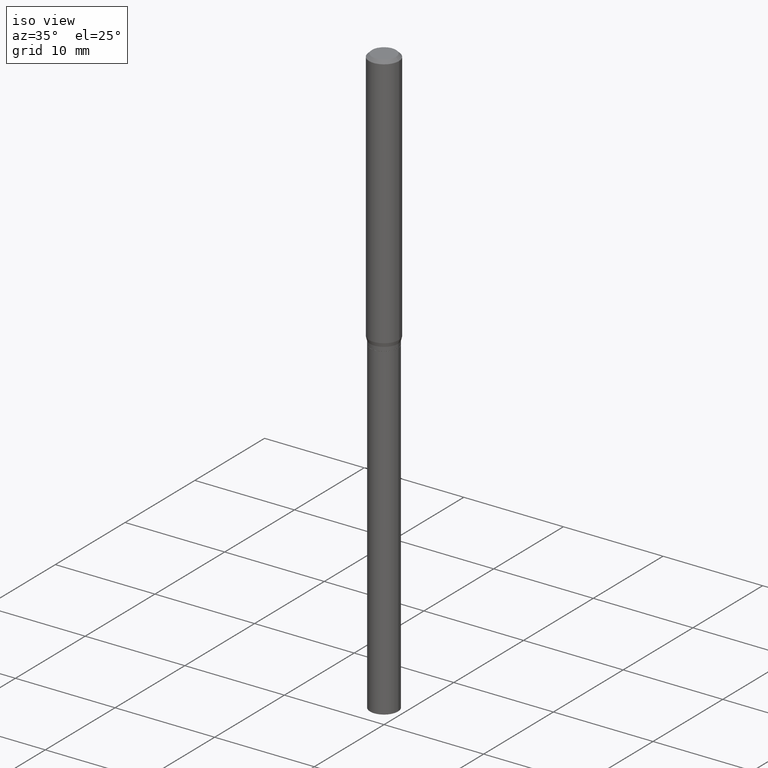
[diagram: clean part render]
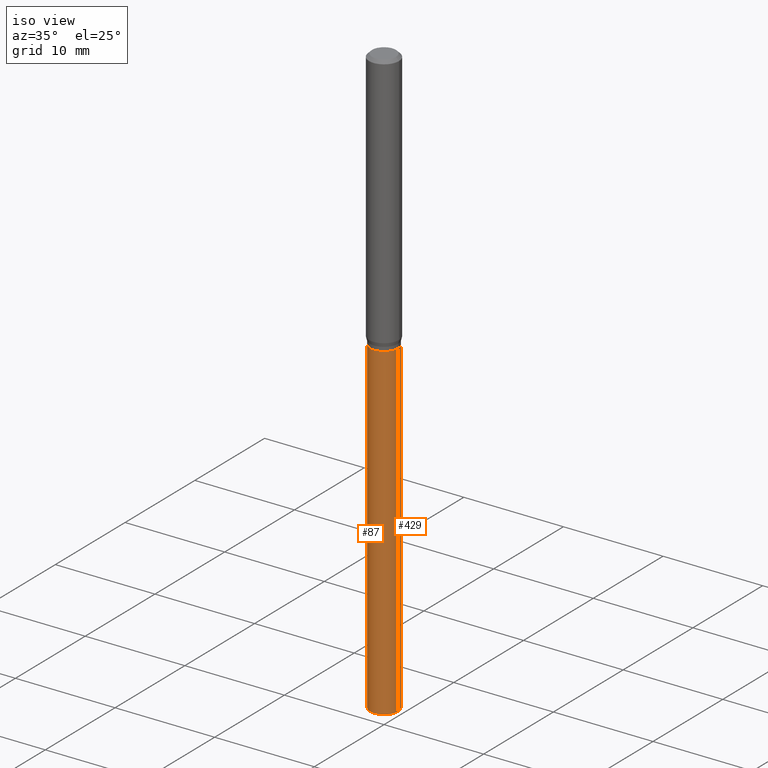
[diagram: same view with one multi-face feature highlighted, each face labeled with its STEP entity id]
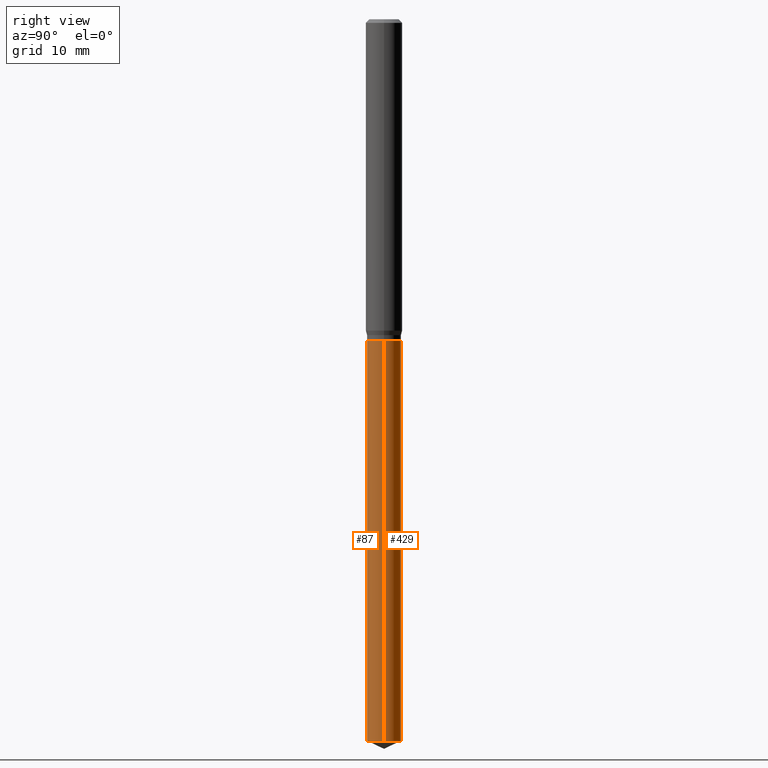
[diagram: same view with one multi-face feature highlighted, each face labeled with its STEP entity id]
A machine part, iso view. The highlighted faces form ONE feature: a constant-radius fillet chain: 2 tangent blend faces with common blend radius 1.3995 mm. The faces share edges in the B-rep.
A second angle (right view) of the same feature is appended — it is thin or edge-on in the first view.
Their STEP definitions:
[1] entity #87 (Cylinder):
#16 = EDGE_CURVE ( 'NONE', #220, #173, #117, .T. ) ;
#28 = DIRECTION ( 'NONE',  ( -2.445468806185136597E-29, 3.491481338843145583E-15, 1.000000000000000000 ) ) ;
#59 = VECTOR ( 'NONE', #66, 39.37007874015748143 ) ;
#64 = EDGE_CURVE ( 'NONE', #323, #173, #182, .T. ) ;
#66 = DIRECTION ( 'NONE',  ( -2.445468806185136877E-29, 3.491481338843145188E-15, 1.000000000000000000 ) ) ;
#72 = CARTESIAN_POINT ( 'NONE',  ( 2.541820277148831753E-29, -3.629045703593566769E-15, -1.039400000000000324 ) ) ;
#75 = CARTESIAN_POINT ( 'NONE',  ( 2.541820277148831753E-29, -3.629045703593565980E-15, -1.039400000000000324 ) ) ;
#82 = DIRECTION ( 'NONE',  ( -2.445468806185136597E-29, 3.491481338843145583E-15, 1.000000000000000000 ) ) ;
#87 = ADVANCED_FACE ( 'NONE', ( #154 ), #109, .T. ) ;
#93 = DIRECTION ( 'NONE',  ( -2.445468806185136877E-29, 3.491481338843145188E-15, 1.000000000000000000 ) ) ;
#108 = CARTESIAN_POINT ( 'NONE',  ( -0.05509999999999999620, -7.766359613999372062E-15, -2.336506448035659211 ) ) ;
#109 = CYLINDRICAL_SURFACE ( 'NONE', #329, 0.05510000000000000314 ) ;
#117 = LINE ( 'NONE', #328, #59 ) ;
#154 = FACE_OUTER_BOUND ( 'NONE', #440, .T. ) ;
#163 = DIRECTION ( 'NONE',  ( 1.000000000000000000, -6.982962677686274599E-15, 0.000000000000000000 ) ) ;
#172 = ORIENTED_EDGE ( 'NONE', *, *, #463, .F. ) ;
#173 = VERTEX_POINT ( 'NONE', #269 ) ;
#180 = CARTESIAN_POINT ( 'NONE',  ( -0.05510000000000000314, -5.501948135094560496E-15, -1.039400000000000324 ) ) ;
#182 = CIRCLE ( 'NONE', #271, 0.05510000000000000314 ) ;
#188 = ORIENTED_EDGE ( 'NONE', *, *, #211, .T. ) ;
#189 = DIRECTION ( 'NONE',  ( 1.000000000000000000, -6.982962677686265133E-15, 0.000000000000000000 ) ) ;
#211 = EDGE_CURVE ( 'NONE', #347, #220, #414, .T. ) ;
#220 = VERTEX_POINT ( 'NONE', #236 ) ;
#236 = CARTESIAN_POINT ( 'NONE',  ( 0.05509999999999999620, -8.542629904943700330E-15, -2.336506448035659211 ) ) ;
#239 = ORIENTED_EDGE ( 'NONE', *, *, #64, .F. ) ;
#269 = CARTESIAN_POINT ( 'NONE',  ( 0.05510000000000000314, -4.013806947134079566E-15, -1.039400000000000324 ) ) ;
#271 = AXIS2_PLACEMENT_3D ( 'NONE', #72, #28, #189 ) ;
#295 = DIRECTION ( 'NONE',  ( -2.445468806185136597E-29, 3.491481338843145583E-15, 1.000000000000000000 ) ) ;
#303 = CARTESIAN_POINT ( 'NONE',  ( -0.05510000000000000314, -3.237536656189751298E-15, -1.039400000000000324 ) ) ;
#323 = VERTEX_POINT ( 'NONE', #180 ) ;
#328 = CARTESIAN_POINT ( 'NONE',  ( 0.05510000000000000314, -4.013806947134079566E-15, -1.039400000000000324 ) ) ;
#329 = AXIS2_PLACEMENT_3D ( 'NONE', #75, #295, #443 ) ;
#330 = AXIS2_PLACEMENT_3D ( 'NONE', #388, #82, #163 ) ;
#347 = VERTEX_POINT ( 'NONE', #108 ) ;
#388 = CARTESIAN_POINT ( 'NONE',  ( 5.713853634121637079E-29, -8.157868661403186744E-15, -2.336506448035659211 ) ) ;
#400 = VECTOR ( 'NONE', #93, 39.37007874015748143 ) ;
#414 = CIRCLE ( 'NONE', #330, 0.05510000000000000314 ) ;
#417 = ORIENTED_EDGE ( 'NONE', *, *, #16, .T. ) ;
#434 = LINE ( 'NONE', #303, #400 ) ;
#440 = EDGE_LOOP ( 'NONE', ( #172, #188, #417, #239 ) ) ;
#443 = DIRECTION ( 'NONE',  ( 1.000000000000000000, -6.982962677686265133E-15, 0.000000000000000000 ) ) ;
#463 = EDGE_CURVE ( 'NONE', #347, #323, #434, .T. ) ;
[2] entity #429 (Cylinder):
#16 = EDGE_CURVE ( 'NONE', #220, #173, #117, .T. ) ;
#22 = CARTESIAN_POINT ( 'NONE',  ( 2.541820277148831753E-29, -3.629045703593565980E-15, -1.039400000000000324 ) ) ;
#43 = CIRCLE ( 'NONE', #385, 0.05510000000000000314 ) ;
#48 = ORIENTED_EDGE ( 'NONE', *, *, #477, .T. ) ;
#59 = VECTOR ( 'NONE', #66, 39.37007874015748143 ) ;
#62 = DIRECTION ( 'NONE',  ( -2.445468806185136597E-29, 3.491481338843145583E-15, 1.000000000000000000 ) ) ;
#66 = DIRECTION ( 'NONE',  ( -2.445468806185136877E-29, 3.491481338843145188E-15, 1.000000000000000000 ) ) ;
#93 = DIRECTION ( 'NONE',  ( -2.445468806185136877E-29, 3.491481338843145188E-15, 1.000000000000000000 ) ) ;
#108 = CARTESIAN_POINT ( 'NONE',  ( -0.05509999999999999620, -7.766359613999372062E-15, -2.336506448035659211 ) ) ;
#117 = LINE ( 'NONE', #328, #59 ) ;
#169 = DIRECTION ( 'NONE',  ( 1.000000000000000000, -6.982962677686265133E-15, 0.000000000000000000 ) ) ;
#173 = VERTEX_POINT ( 'NONE', #269 ) ;
#180 = CARTESIAN_POINT ( 'NONE',  ( -0.05510000000000000314, -5.501948135094560496E-15, -1.039400000000000324 ) ) ;
#213 = AXIS2_PLACEMENT_3D ( 'NONE', #22, #484, #321 ) ;
#217 = ORIENTED_EDGE ( 'NONE', *, *, #314, .F. ) ;
#220 = VERTEX_POINT ( 'NONE', #236 ) ;
#236 = CARTESIAN_POINT ( 'NONE',  ( 0.05509999999999999620, -8.542629904943700330E-15, -2.336506448035659211 ) ) ;
#241 = CARTESIAN_POINT ( 'NONE',  ( 5.713853634121637079E-29, -8.157868661403186744E-15, -2.336506448035659211 ) ) ;
#269 = CARTESIAN_POINT ( 'NONE',  ( 0.05510000000000000314, -4.013806947134079566E-15, -1.039400000000000324 ) ) ;
#303 = CARTESIAN_POINT ( 'NONE',  ( -0.05510000000000000314, -3.237536656189751298E-15, -1.039400000000000324 ) ) ;
#314 = EDGE_CURVE ( 'NONE', #173, #323, #43, .T. ) ;
#320 = ORIENTED_EDGE ( 'NONE', *, *, #16, .F. ) ;
#321 = DIRECTION ( 'NONE',  ( 1.000000000000000000, -6.982962677686265133E-15, 0.000000000000000000 ) ) ;
#323 = VERTEX_POINT ( 'NONE', #180 ) ;
#328 = CARTESIAN_POINT ( 'NONE',  ( 0.05510000000000000314, -4.013806947134079566E-15, -1.039400000000000324 ) ) ;
#347 = VERTEX_POINT ( 'NONE', #108 ) ;
#348 = DIRECTION ( 'NONE',  ( 1.000000000000000000, -6.982962677686274599E-15, 0.000000000000000000 ) ) ;
#355 = CIRCLE ( 'NONE', #376, 0.05510000000000000314 ) ;
#359 = CYLINDRICAL_SURFACE ( 'NONE', #213, 0.05510000000000000314 ) ;
#376 = AXIS2_PLACEMENT_3D ( 'NONE', #241, #431, #348 ) ;
#385 = AXIS2_PLACEMENT_3D ( 'NONE', #470, #62, #169 ) ;
#391 = ORIENTED_EDGE ( 'NONE', *, *, #463, .T. ) ;
#400 = VECTOR ( 'NONE', #93, 39.37007874015748143 ) ;
#429 = ADVANCED_FACE ( 'NONE', ( #479 ), #359, .T. ) ;
#431 = DIRECTION ( 'NONE',  ( -2.445468806185136597E-29, 3.491481338843145583E-15, 1.000000000000000000 ) ) ;
#434 = LINE ( 'NONE', #303, #400 ) ;
#463 = EDGE_CURVE ( 'NONE', #347, #323, #434, .T. ) ;
#470 = CARTESIAN_POINT ( 'NONE',  ( 2.541820277148831753E-29, -3.629045703593566769E-15, -1.039400000000000324 ) ) ;
#473 = EDGE_LOOP ( 'NONE', ( #48, #391, #217, #320 ) ) ;
#477 = EDGE_CURVE ( 'NONE', #220, #347, #355, .T. ) ;
#479 = FACE_OUTER_BOUND ( 'NONE', #473, .T. ) ;
#484 = DIRECTION ( 'NONE',  ( -2.445468806185136597E-29, 3.491481338843145583E-15, 1.000000000000000000 ) ) ;